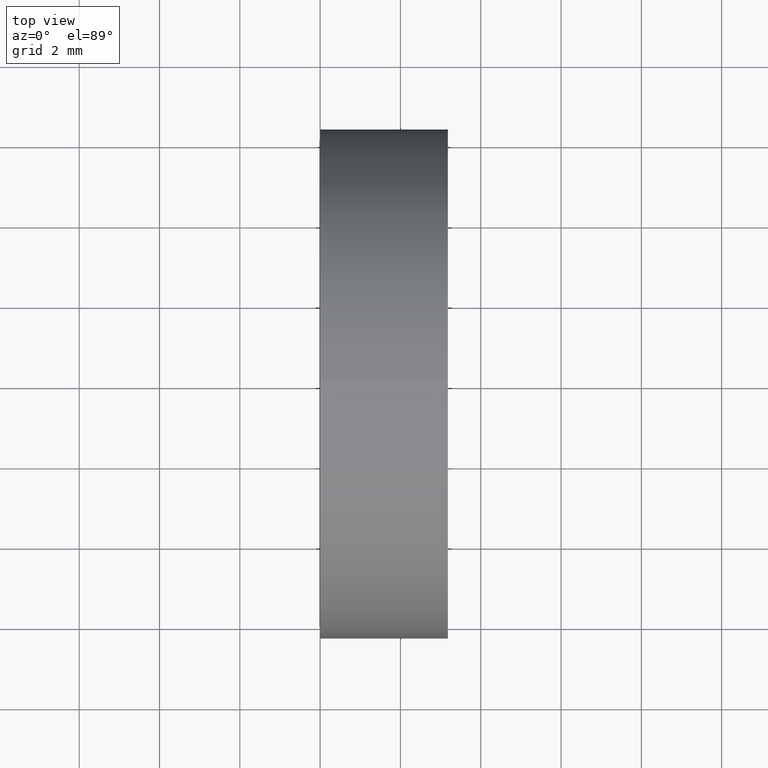
[diagram: clean part render]
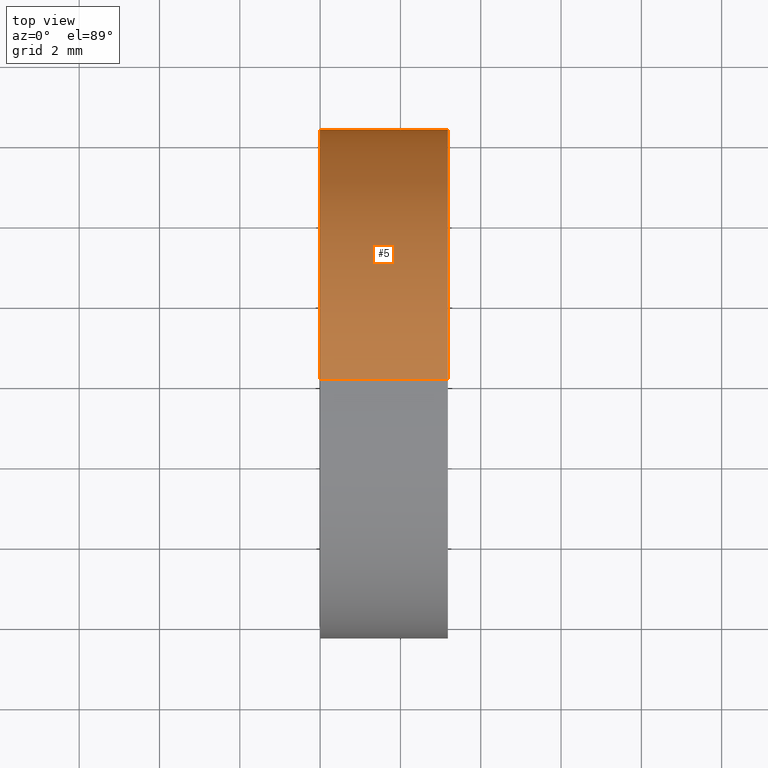
[diagram: same view with one face highlighted and labeled with its STEP entity id]
A machine part, top view. The second image highlights one B-rep face of the part: STEP entity #5.
In plain terms, the highlighted cylindrical surface (partial cylindrical patch) has radius 6.35 mm, axis along (-1, -0, -0).
Its self-contained STEP definition (entity closure, byte-faithful):
#5 = ADVANCED_FACE ( 'NONE', ( #67 ), #70, .T. ) ;
#23 = AXIS2_PLACEMENT_3D ( 'NONE', #56, #160, #145 ) ;
#29 = LINE ( 'NONE', #64, #141 ) ;
#30 = DIRECTION ( 'NONE',  ( -1.000000000000000000, -0.0000000000000000000, -0.0000000000000000000 ) ) ;
#32 = EDGE_CURVE ( 'NONE', #58, #82, #116, .T. ) ;
#37 = ORIENTED_EDGE ( 'NONE', *, *, #32, .T. ) ;
#46 = DIRECTION ( 'NONE',  ( -1.000000000000000000, -0.0000000000000000000, -0.0000000000000000000 ) ) ;
#47 = VECTOR ( 'NONE', #73, 1000.000000000000000 ) ;
#52 = AXIS2_PLACEMENT_3D ( 'NONE', #83, #30, #85 ) ;
#53 = LINE ( 'NONE', #159, #47 ) ;
#55 = DIRECTION ( 'NONE',  ( 0.0000000000000000000, 0.0000000000000000000, 1.000000000000000000 ) ) ;
#56 = CARTESIAN_POINT ( 'NONE',  ( 0.0000000000000000000, 0.0000000000000000000, 0.0000000000000000000 ) ) ;
#58 = VERTEX_POINT ( 'NONE', #134 ) ;
#64 = CARTESIAN_POINT ( 'NONE',  ( 0.0000000000000000000, 7.776507174585694100E-016, -6.350000000000001400 ) ) ;
#67 = FACE_OUTER_BOUND ( 'NONE', #109, .T. ) ;
#70 = CYLINDRICAL_SURFACE ( 'NONE', #23, 6.350000000000001400 ) ;
#73 = DIRECTION ( 'NONE',  ( -1.000000000000000000, -0.0000000000000000000, -0.0000000000000000000 ) ) ;
#74 = CARTESIAN_POINT ( 'NONE',  ( 0.0000000000000000000, 7.776507174585693100E-016, -6.349999999999999600 ) ) ;
#76 = EDGE_CURVE ( 'NONE', #58, #166, #53, .T. ) ;
#78 = ORIENTED_EDGE ( 'NONE', *, *, #139, .T. ) ;
#82 = VERTEX_POINT ( 'NONE', #129 ) ;
#83 = CARTESIAN_POINT ( 'NONE',  ( 3.181816148789554000, 0.0000000000000000000, 0.0000000000000000000 ) ) ;
#85 = DIRECTION ( 'NONE',  ( 0.0000000000000000000, 0.0000000000000000000, 1.000000000000000000 ) ) ;
#92 = EDGE_CURVE ( 'NONE', #166, #133, #115, .T. ) ;
#103 = AXIS2_PLACEMENT_3D ( 'NONE', #114, #150, #55 ) ;
#109 = EDGE_LOOP ( 'NONE', ( #37, #78, #117, #158 ) ) ;
#114 = CARTESIAN_POINT ( 'NONE',  ( 0.0000000000000000000, 0.0000000000000000000, 0.0000000000000000000 ) ) ;
#115 = CIRCLE ( 'NONE', #103, 6.349999999999999600 ) ;
#116 = CIRCLE ( 'NONE', #52, 6.350000000000003200 ) ;
#117 = ORIENTED_EDGE ( 'NONE', *, *, #92, .F. ) ;
#129 = CARTESIAN_POINT ( 'NONE',  ( 3.181816148789554000, 7.776507174585711900E-016, -6.350000000000015600 ) ) ;
#133 = VERTEX_POINT ( 'NONE', #74 ) ;
#134 = CARTESIAN_POINT ( 'NONE',  ( 3.181816148789554000, 0.0000000000000000000, 6.350000000000015600 ) ) ;
#139 = EDGE_CURVE ( 'NONE', #82, #133, #29, .T. ) ;
#141 = VECTOR ( 'NONE', #46, 1000.000000000000000 ) ;
#145 = DIRECTION ( 'NONE',  ( 0.0000000000000000000, 0.0000000000000000000, 1.000000000000000000 ) ) ;
#149 = CARTESIAN_POINT ( 'NONE',  ( 0.0000000000000000000, 0.0000000000000000000, 6.349999999999999600 ) ) ;
#150 = DIRECTION ( 'NONE',  ( -1.000000000000000000, -0.0000000000000000000, -0.0000000000000000000 ) ) ;
#158 = ORIENTED_EDGE ( 'NONE', *, *, #76, .F. ) ;
#159 = CARTESIAN_POINT ( 'NONE',  ( 0.0000000000000000000, 0.0000000000000000000, 6.350000000000001400 ) ) ;
#160 = DIRECTION ( 'NONE',  ( -1.000000000000000000, -0.0000000000000000000, -0.0000000000000000000 ) ) ;
#166 = VERTEX_POINT ( 'NONE', #149 ) ;